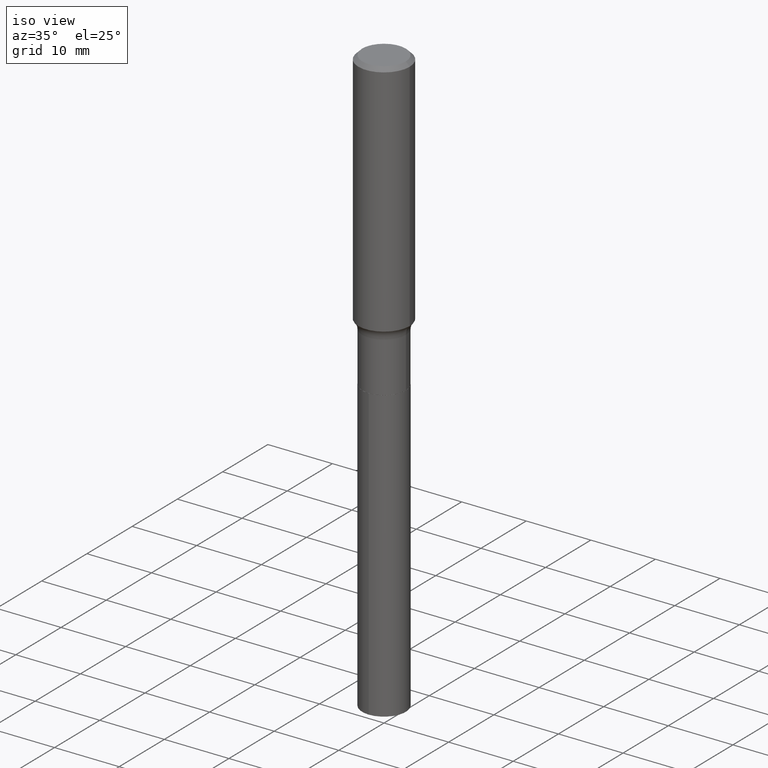
[diagram: clean part render]
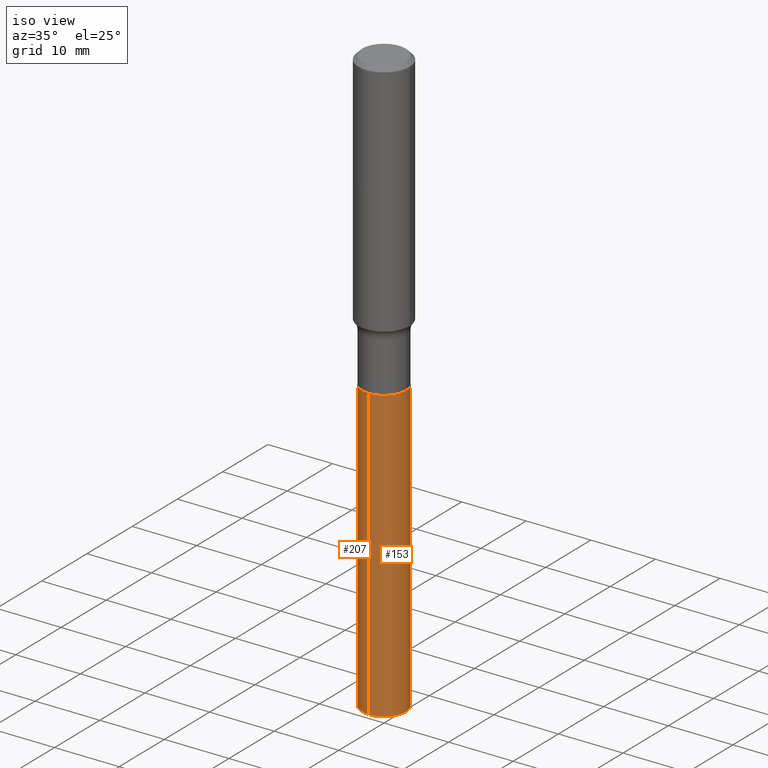
[diagram: same view with one multi-face feature highlighted, each face labeled with its STEP entity id]
A machine part, iso view. The highlighted faces form ONE feature: a constant-radius fillet chain: 2 tangent blend faces with common blend radius 3.3782 mm. The faces share edges in the B-rep.
Their STEP definitions:
[1] entity #153 (Cylinder):
#32 = DIRECTION ( 'NONE',  ( -2.445468195958262557E-29, 3.491482212722760991E-15, 1.000000000000000000 ) ) ;
#54 = VECTOR ( 'NONE', #239, 39.37007874015748143 ) ;
#71 = EDGE_LOOP ( 'NONE', ( #193, #302, #74, #163 ) ) ;
#74 = ORIENTED_EDGE ( 'NONE', *, *, #358, .F. ) ;
#82 = DIRECTION ( 'NONE',  ( -2.445468195958262557E-29, 3.491482212722760991E-15, 1.000000000000000000 ) ) ;
#86 = LINE ( 'NONE', #250, #54 ) ;
#90 = CARTESIAN_POINT ( 'NONE',  ( -9.287340361322290517E-16, -0.1330000000000063354, -1.812899999999999734 ) ) ;
#91 = CIRCLE ( 'NONE', #363, 0.1330000000000000071 ) ;
#102 = VERTEX_POINT ( 'NONE', #270 ) ;
#112 = DIRECTION ( 'NONE',  ( -6.982962677686265922E-15, -1.000000000000000000, 4.108042095735734288E-15 ) ) ;
#125 = EDGE_CURVE ( 'NONE', #447, #264, #191, .T. ) ;
#126 = DIRECTION ( 'NONE',  ( -2.445468195958262557E-29, 3.491482212722760991E-15, 1.000000000000000000 ) ) ;
#152 = FACE_OUTER_BOUND ( 'NONE', #71, .T. ) ;
#153 = ADVANCED_FACE ( 'NONE', ( #152 ), #228, .T. ) ;
#163 = ORIENTED_EDGE ( 'NONE', *, *, #364, .F. ) ;
#189 = EDGE_CURVE ( 'NONE', #264, #102, #86, .T. ) ;
#190 = VERTEX_POINT ( 'NONE', #232 ) ;
#191 = CIRCLE ( 'NONE', #319, 0.1330000000000000071 ) ;
#193 = ORIENTED_EDGE ( 'NONE', *, *, #125, .T. ) ;
#202 = LINE ( 'NONE', #90, #409 ) ;
#228 = CYLINDRICAL_SURFACE ( 'NONE', #417, 0.1330000000000000071 ) ;
#232 = CARTESIAN_POINT ( 'NONE',  ( -9.287340361322290517E-16, -0.1330000000000063354, -1.812899999999999734 ) ) ;
#235 = DIRECTION ( 'NONE',  ( -6.982962677686265922E-15, -1.000000000000000000, 4.108042095735734288E-15 ) ) ;
#239 = DIRECTION ( 'NONE',  ( -2.445468195958262557E-29, 3.491482212722760991E-15, 1.000000000000000000 ) ) ;
#241 = CARTESIAN_POINT ( 'NONE',  ( 4.433390398733034659E-29, -6.329706519188739286E-15, -1.812900000000000178 ) ) ;
#250 = CARTESIAN_POINT ( 'NONE',  ( 9.450218385609774739E-16, 0.1329999999999936788, -1.812900000000000844 ) ) ;
#264 = VERTEX_POINT ( 'NONE', #338 ) ;
#270 = CARTESIAN_POINT ( 'NONE',  ( 9.450218385610212557E-16, 0.1329999999999936788, -1.812900000000000844 ) ) ;
#302 = ORIENTED_EDGE ( 'NONE', *, *, #189, .T. ) ;
#319 = AXIS2_PLACEMENT_3D ( 'NONE', #415, #32, #112 ) ;
#338 = CARTESIAN_POINT ( 'NONE',  ( 9.450218385610204668E-16, 0.1329999999999874338, -3.583065261079096508 ) ) ;
#351 = DIRECTION ( 'NONE',  ( -2.445468195958262557E-29, 3.491482212722760991E-15, 1.000000000000000000 ) ) ;
#353 = CARTESIAN_POINT ( 'NONE',  ( -9.287340361321856644E-16, -0.1330000000000124971, -3.583065261079095620 ) ) ;
#358 = EDGE_CURVE ( 'NONE', #190, #102, #91, .T. ) ;
#363 = AXIS2_PLACEMENT_3D ( 'NONE', #241, #126, #386 ) ;
#364 = EDGE_CURVE ( 'NONE', #447, #190, #202, .T. ) ;
#386 = DIRECTION ( 'NONE',  ( -6.982962677686265922E-15, -1.000000000000000000, 4.108042095735734288E-15 ) ) ;
#409 = VECTOR ( 'NONE', #351, 39.37007874015748143 ) ;
#415 = CARTESIAN_POINT ( 'NONE',  ( 8.762273246292118594E-29, -1.251020704182614589E-14, -3.583065261079096064 ) ) ;
#417 = AXIS2_PLACEMENT_3D ( 'NONE', #419, #82, #235 ) ;
#419 = CARTESIAN_POINT ( 'NONE',  ( 4.433390398733034659E-29, -6.329706519188739286E-15, -1.812900000000000178 ) ) ;
#447 = VERTEX_POINT ( 'NONE', #353 ) ;
[2] entity #207 (Cylinder):
#23 = CARTESIAN_POINT ( 'NONE',  ( 4.433390398733034659E-29, -6.329706519188739286E-15, -1.812900000000000178 ) ) ;
#24 = ORIENTED_EDGE ( 'NONE', *, *, #470, .F. ) ;
#47 = CARTESIAN_POINT ( 'NONE',  ( 8.762273246292118594E-29, -1.251020704182614589E-14, -3.583065261079096064 ) ) ;
#49 = DIRECTION ( 'NONE',  ( -6.982962677686265922E-15, -1.000000000000000000, 4.108042095735734288E-15 ) ) ;
#54 = VECTOR ( 'NONE', #239, 39.37007874015748143 ) ;
#86 = LINE ( 'NONE', #250, #54 ) ;
#90 = CARTESIAN_POINT ( 'NONE',  ( -9.287340361322290517E-16, -0.1330000000000063354, -1.812899999999999734 ) ) ;
#98 = DIRECTION ( 'NONE',  ( -6.982962677686265922E-15, -1.000000000000000000, 4.108042095735734288E-15 ) ) ;
#102 = VERTEX_POINT ( 'NONE', #270 ) ;
#105 = DIRECTION ( 'NONE',  ( -2.445468195958262557E-29, 3.491482212722760991E-15, 1.000000000000000000 ) ) ;
#111 = AXIS2_PLACEMENT_3D ( 'NONE', #366, #295, #98 ) ;
#130 = DIRECTION ( 'NONE',  ( -2.445468195958262557E-29, 3.491482212722760991E-15, 1.000000000000000000 ) ) ;
#161 = AXIS2_PLACEMENT_3D ( 'NONE', #47, #130, #282 ) ;
#186 = EDGE_LOOP ( 'NONE', ( #210, #478, #373, #24 ) ) ;
#189 = EDGE_CURVE ( 'NONE', #264, #102, #86, .T. ) ;
#190 = VERTEX_POINT ( 'NONE', #232 ) ;
#202 = LINE ( 'NONE', #90, #409 ) ;
#207 = ADVANCED_FACE ( 'NONE', ( #347 ), #240, .T. ) ;
#210 = ORIENTED_EDGE ( 'NONE', *, *, #189, .F. ) ;
#232 = CARTESIAN_POINT ( 'NONE',  ( -9.287340361322290517E-16, -0.1330000000000063354, -1.812899999999999734 ) ) ;
#239 = DIRECTION ( 'NONE',  ( -2.445468195958262557E-29, 3.491482212722760991E-15, 1.000000000000000000 ) ) ;
#240 = CYLINDRICAL_SURFACE ( 'NONE', #111, 0.1330000000000000071 ) ;
#250 = CARTESIAN_POINT ( 'NONE',  ( 9.450218385609774739E-16, 0.1329999999999936788, -1.812900000000000844 ) ) ;
#264 = VERTEX_POINT ( 'NONE', #338 ) ;
#268 = CIRCLE ( 'NONE', #161, 0.1330000000000000071 ) ;
#270 = CARTESIAN_POINT ( 'NONE',  ( 9.450218385610212557E-16, 0.1329999999999936788, -1.812900000000000844 ) ) ;
#282 = DIRECTION ( 'NONE',  ( -6.982962677686265922E-15, -1.000000000000000000, 4.108042095735734288E-15 ) ) ;
#295 = DIRECTION ( 'NONE',  ( -2.445468195958262557E-29, 3.491482212722760991E-15, 1.000000000000000000 ) ) ;
#338 = CARTESIAN_POINT ( 'NONE',  ( 9.450218385610204668E-16, 0.1329999999999874338, -3.583065261079096508 ) ) ;
#347 = FACE_OUTER_BOUND ( 'NONE', #186, .T. ) ;
#351 = DIRECTION ( 'NONE',  ( -2.445468195958262557E-29, 3.491482212722760991E-15, 1.000000000000000000 ) ) ;
#353 = CARTESIAN_POINT ( 'NONE',  ( -9.287340361321856644E-16, -0.1330000000000124971, -3.583065261079095620 ) ) ;
#364 = EDGE_CURVE ( 'NONE', #447, #190, #202, .T. ) ;
#366 = CARTESIAN_POINT ( 'NONE',  ( 4.433390398733034659E-29, -6.329706519188739286E-15, -1.812900000000000178 ) ) ;
#373 = ORIENTED_EDGE ( 'NONE', *, *, #364, .T. ) ;
#409 = VECTOR ( 'NONE', #351, 39.37007874015748143 ) ;
#438 = EDGE_CURVE ( 'NONE', #264, #447, #268, .T. ) ;
#447 = VERTEX_POINT ( 'NONE', #353 ) ;
#470 = EDGE_CURVE ( 'NONE', #102, #190, #480, .T. ) ;
#478 = ORIENTED_EDGE ( 'NONE', *, *, #438, .T. ) ;
#480 = CIRCLE ( 'NONE', #490, 0.1330000000000000071 ) ;
#490 = AXIS2_PLACEMENT_3D ( 'NONE', #23, #105, #49 ) ;